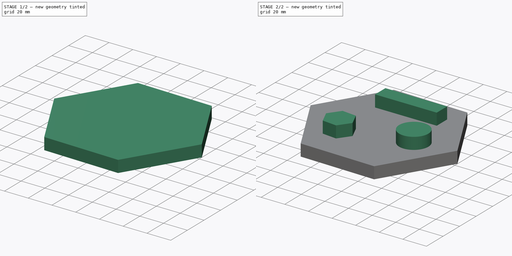
[diagram: build sequence overview — one tinted view per stage of 2, left to right]
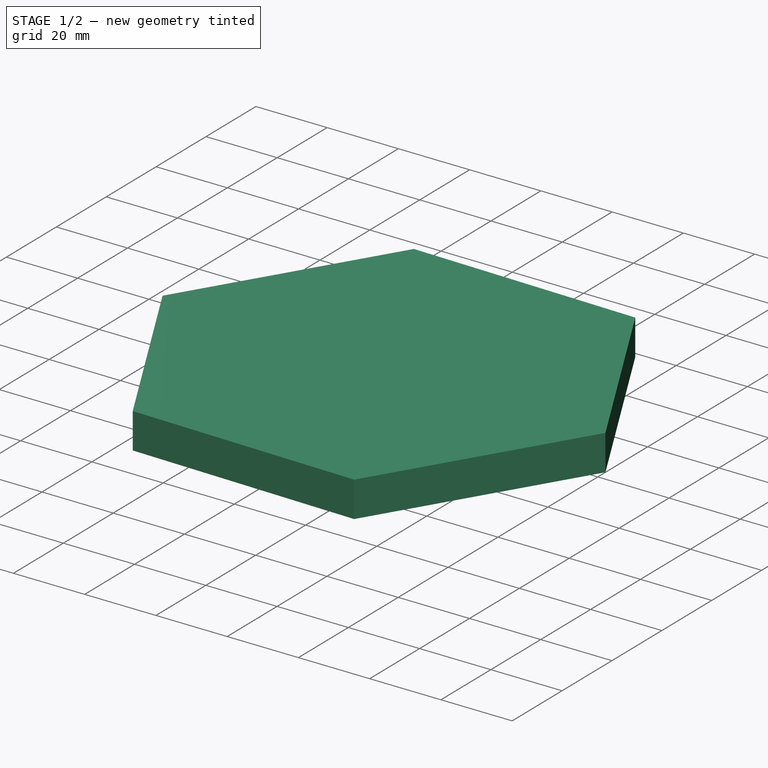
[diagram: stage 1 of 2 — iso view after this stage's code; geometry added in this stage tinted green]
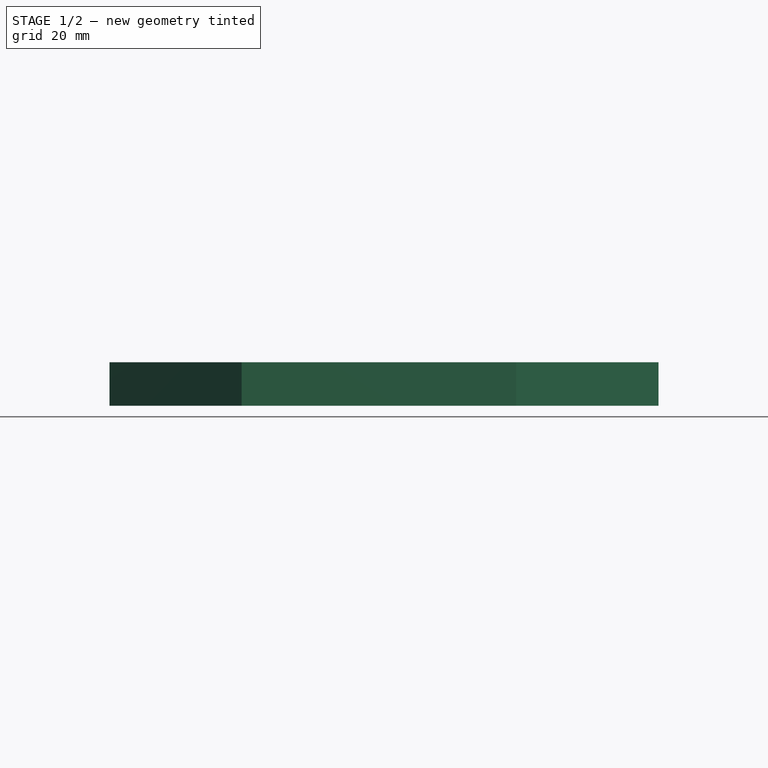
[diagram: stage 1 of 2 — front view after this stage's code; geometry added in this stage tinted green]
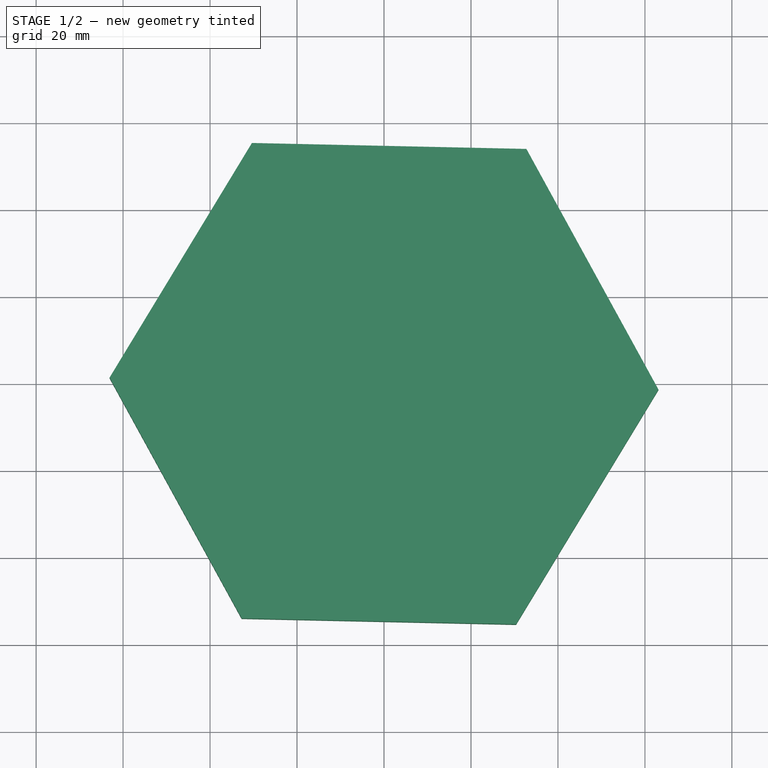
[diagram: stage 1 of 2 — top view after this stage's code; geometry added in this stage tinted green]
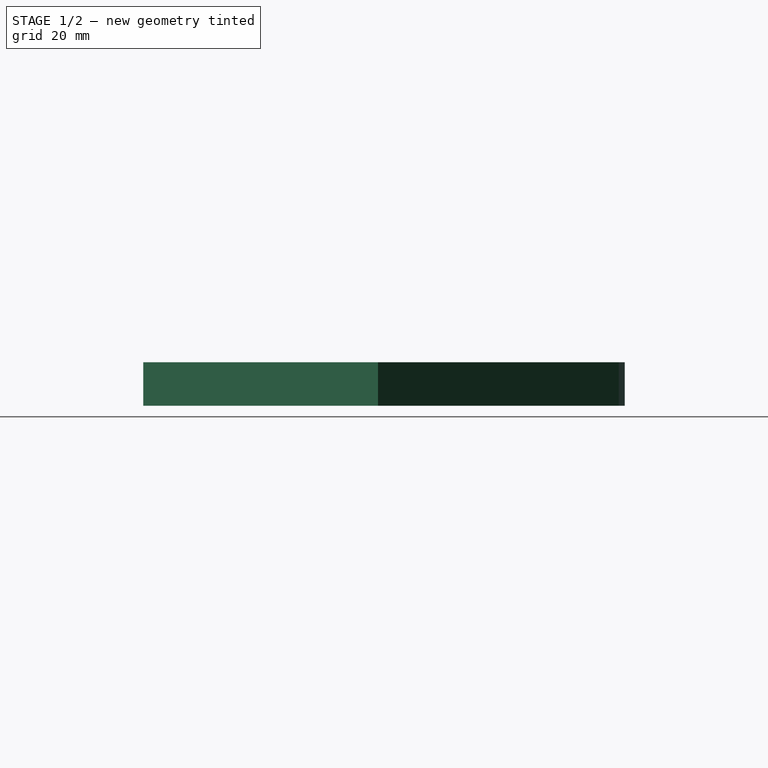
[diagram: stage 1 of 2 — right view after this stage's code; geometry added in this stage tinted green]
FCSTD DOCUMENT  (FreeCAD 0.17R13327 (Git))
Label: protrusion
License: All rights reserved
LicenseURL: http://en.wikipedia.org/wiki/All_rights_reserved
objects: Sketcher::SketchObject×2, PartDesign::Pad×2, PartDesign::Body×1
note: 7 computed .brp shape members not serialized (recipe doc carries the construction recipe); baked Part::Feature solids carry a one-line shape summary decoded from their .brp

FEATURE [Sketcher::SketchObject] Sketch
  MapMode = 5
  Support = -> [XY_Plane]
  sketch-geometry (7):
    g0: LineSegment StartX=30.3722 StartY=-55.3456 StartZ=0 EndX=63.1168 EndY=-1.36971 EndZ=0
    g1: LineSegment StartX=63.1168 StartY=-1.36971 StartZ=0 EndX=32.7446 EndY=53.9759 EndZ=0
    g2: LineSegment StartX=32.7446 StartY=53.9759 StartZ=0 EndX=-30.3722 EndY=55.3456 EndZ=0
    g3: LineSegment StartX=-30.3722 StartY=55.3456 StartZ=0 EndX=-63.1168 EndY=1.36971 EndZ=0
    g4: LineSegment StartX=-63.1168 StartY=1.36971 StartZ=0 EndX=-32.7446 EndY=-53.9759 EndZ=0
    g5: LineSegment StartX=-32.7446 StartY=-53.9759 StartZ=0 EndX=30.3722 EndY=-55.3456 EndZ=0
    g6: Circle [constr] CenterX=0 CenterY=0 CenterZ=0 NormalX=0 NormalY=0 NormalZ=1 AngleXU=0 Radius=63.1317
  constraints (14):
    c: Coincident(g0,g1)
    c: Coincident(g1,g2)
    c: Coincident(g2,g3)
    c: Coincident(g3,g4)
    c: Coincident(g4,g5)
    c: Coincident(g5,g0)
    c: Equal(g0, g1-g5) x5
    c: PointOnObject(g0,g6)
    c: PointOnObject(g1,g6)
    c: PointOnObject(g2,g6)
    c: PointOnObject(g3,g6)
    c: PointOnObject(g4,g6)
    c: PointOnObject(g5,g6)
    c: Coincident(g6,g-1)
FEATURE [PartDesign::Pad] Pad
  Length = 10
  Length2 = 100
  Profile = -> Sketch
  Type = 0
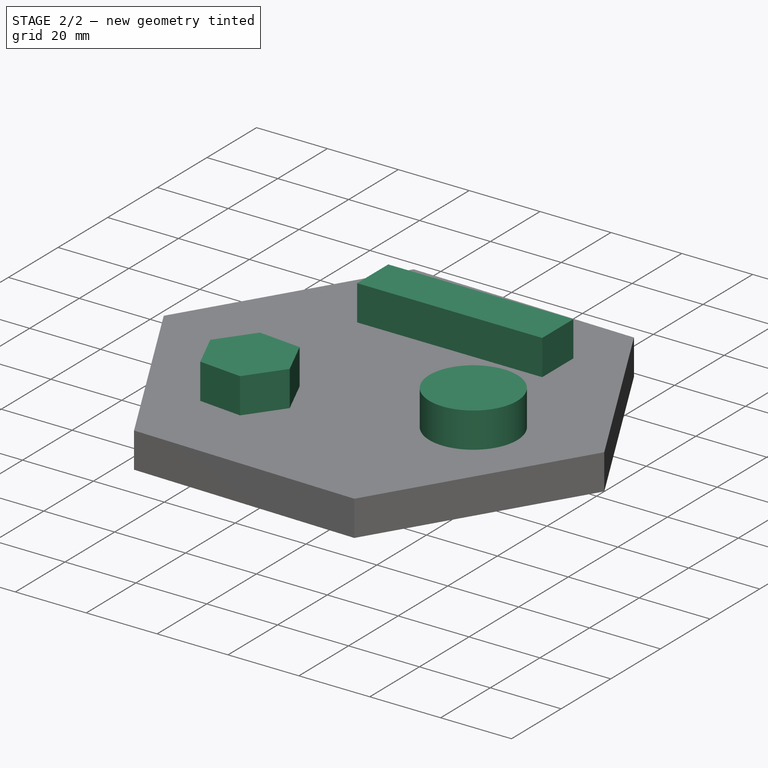
[diagram: stage 2 of 2 — iso view after this stage's code; geometry added in this stage tinted green]
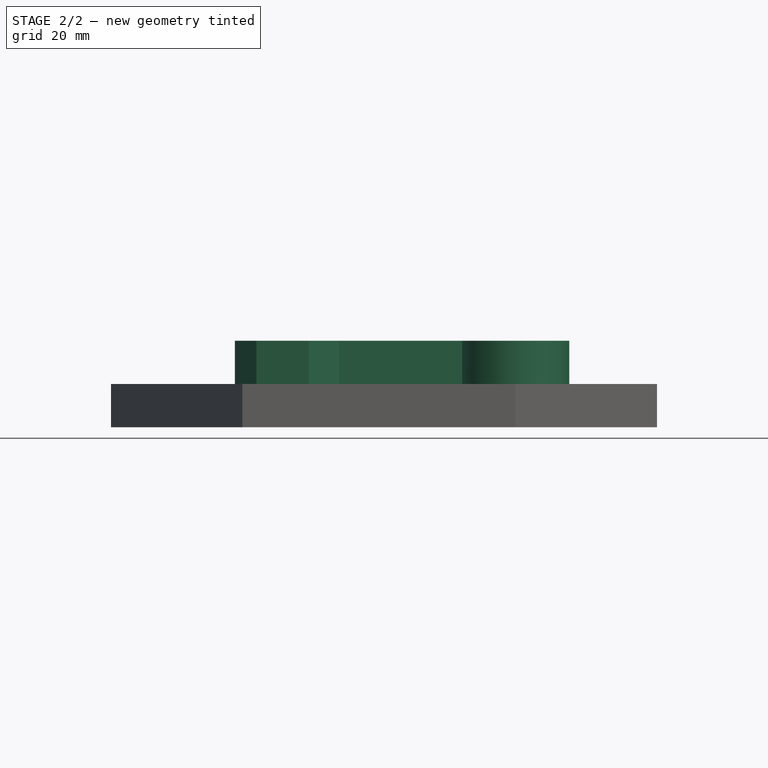
[diagram: stage 2 of 2 — front view after this stage's code; geometry added in this stage tinted green]
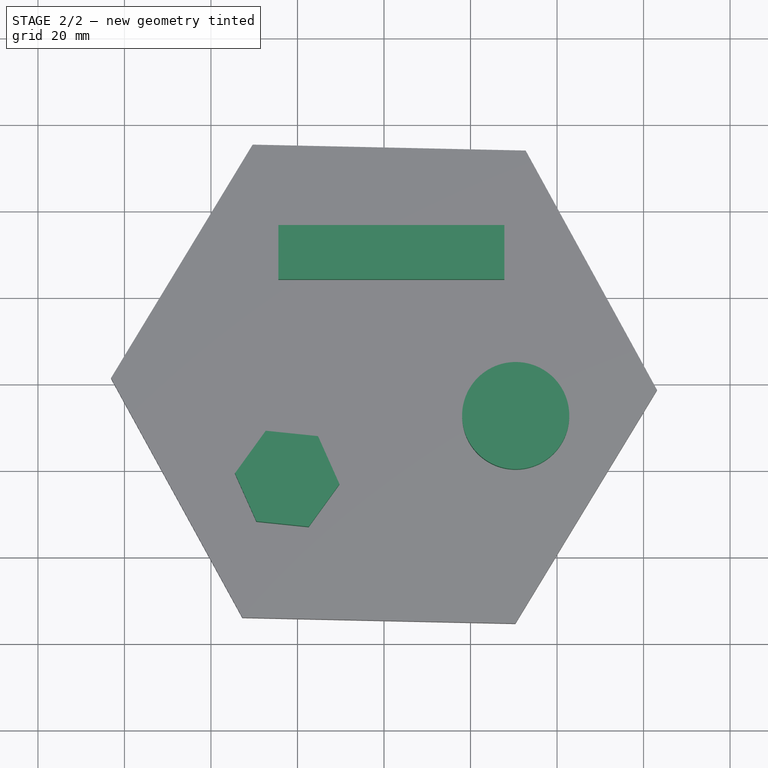
[diagram: stage 2 of 2 — top view after this stage's code; geometry added in this stage tinted green]
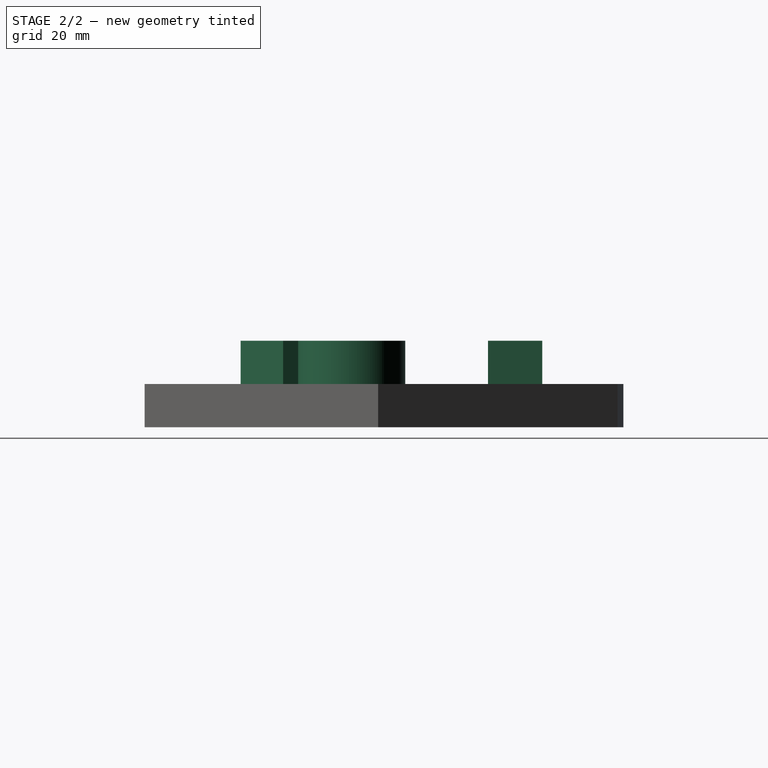
[diagram: stage 2 of 2 — right view after this stage's code; geometry added in this stage tinted green]
FEATURE [Sketcher::SketchObject] Sketch001
  MapMode = 5
  Placement = pos=(0,0,10) rot=(0,0,1;0rad)
  Support = -> [Pad]
  sketch-geometry (12):
    g0: LineSegment StartX=-24.4177 StartY=36.5894 StartZ=0 EndX=27.8145 EndY=36.5894 EndZ=0
    g1: LineSegment StartX=27.8145 StartY=36.5894 StartZ=0 EndX=27.8145 EndY=24.042 EndZ=0
    g2: LineSegment StartX=27.8145 StartY=24.042 StartZ=0 EndX=-24.4177 EndY=24.042 EndZ=0
    g3: LineSegment StartX=-24.4177 StartY=24.042 StartZ=0 EndX=-24.4177 EndY=36.5894 EndZ=0
    g4: LineSegment StartX=-17.4145 StartY=-33.1507 StartZ=0 EndX=-10.2919 EndY=-23.3105 EndZ=0
    g5: LineSegment StartX=-10.2919 StartY=-23.3105 StartZ=0 EndX=-15.2525 EndY=-12.2221 EndZ=0
    g6: LineSegment StartX=-15.2525 StartY=-12.2221 StartZ=0 EndX=-27.3357 EndY=-10.9739 EndZ=0
    g7: LineSegment StartX=-27.3357 StartY=-10.9739 StartZ=0 EndX=-34.4582 EndY=-20.8141 EndZ=0
    g8: LineSegment StartX=-34.4582 StartY=-20.8141 StartZ=0 EndX=-29.4976 EndY=-31.9025 EndZ=0
    g9: LineSegment StartX=-29.4976 StartY=-31.9025 StartZ=0 EndX=-17.4145 EndY=-33.1507 EndZ=0
    g10: Circle [constr] CenterX=-22.3751 CenterY=-22.0623 CenterZ=0 NormalX=0 NormalY=0 NormalZ=1 AngleXU=0 Radius=12.1474
    g11: Circle CenterX=30.4407 CenterY=-7.47232 CenterZ=0 NormalX=0 NormalY=0 NormalZ=1 AngleXU=0 Radius=12.3869
  constraints (21):
    c: Coincident(g0,g1)
    c: Coincident(g1,g2)
    c: Coincident(g2,g3)
    c: Coincident(g3,g0)
    c: Horizontal(g0)
    c: Horizontal(g2)
    c: Vertical(g1)
    c: Vertical(g3)
    c: Coincident(g4,g5)
    c: Coincident(g5,g6)
    c: Coincident(g6,g7)
    c: Coincident(g7,g8)
    c: Coincident(g8,g9)
    c: Coincident(g9,g4)
    c: Equal(g4, g5-g9) x5
    c: PointOnObject(g4,g10)
    c: PointOnObject(g5,g10)
    c: PointOnObject(g6,g10)
    c: PointOnObject(g7,g10)
    c: PointOnObject(g8,g10)
    c: PointOnObject(g9,g10)
FEATURE [PartDesign::Pad] Pad001
  BaseFeature = -> Pad
  Length = 10
  Length2 = 100
  Profile = -> Sketch001
  Type = 0
FEATURE [PartDesign::Body] Body
  Group = -> [Sketch,Pad,Sketch001,Pad001]
  Origin = -> BodyOrigin
  Tip = -> Pad001
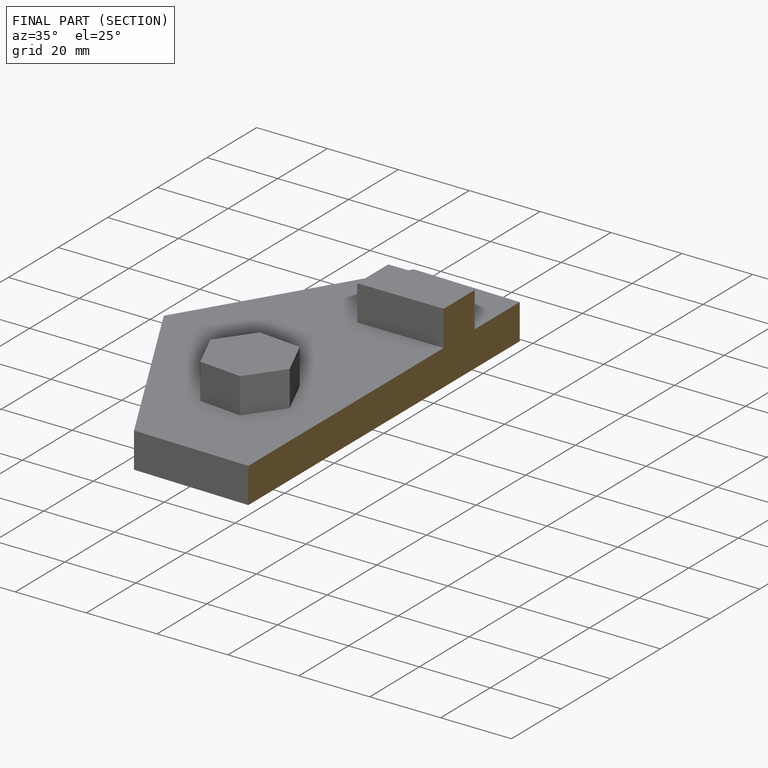
[diagram: finished part — half-section view (interior)]
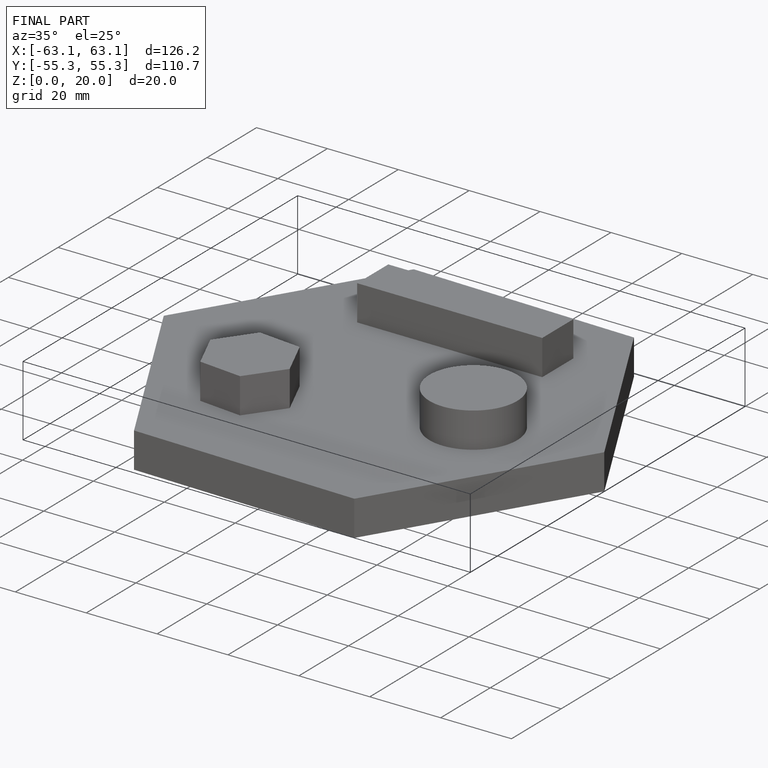
[diagram: finished part — iso view with bounding-box wireframe]
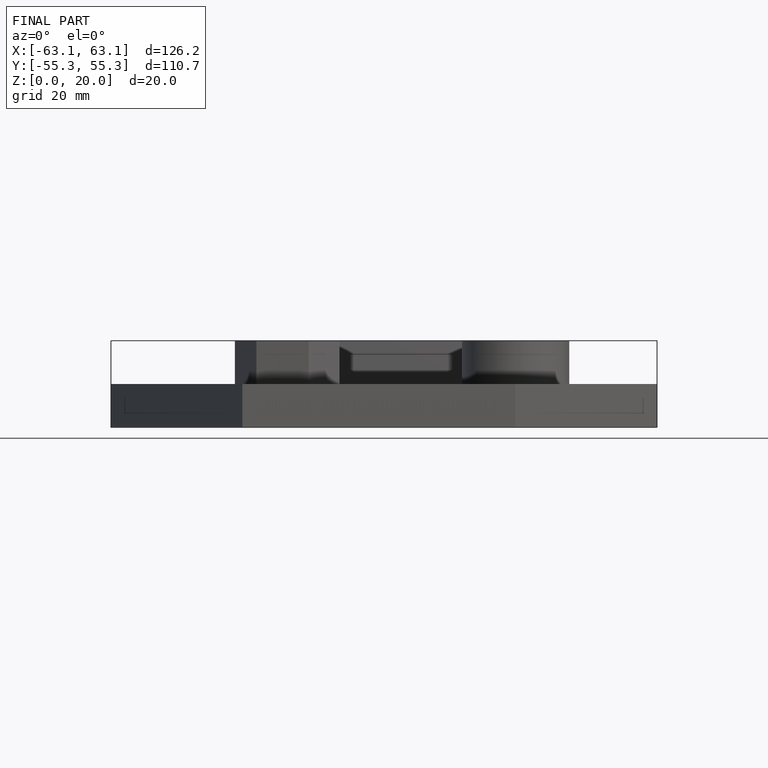
[diagram: finished part — front view with bounding-box wireframe]
